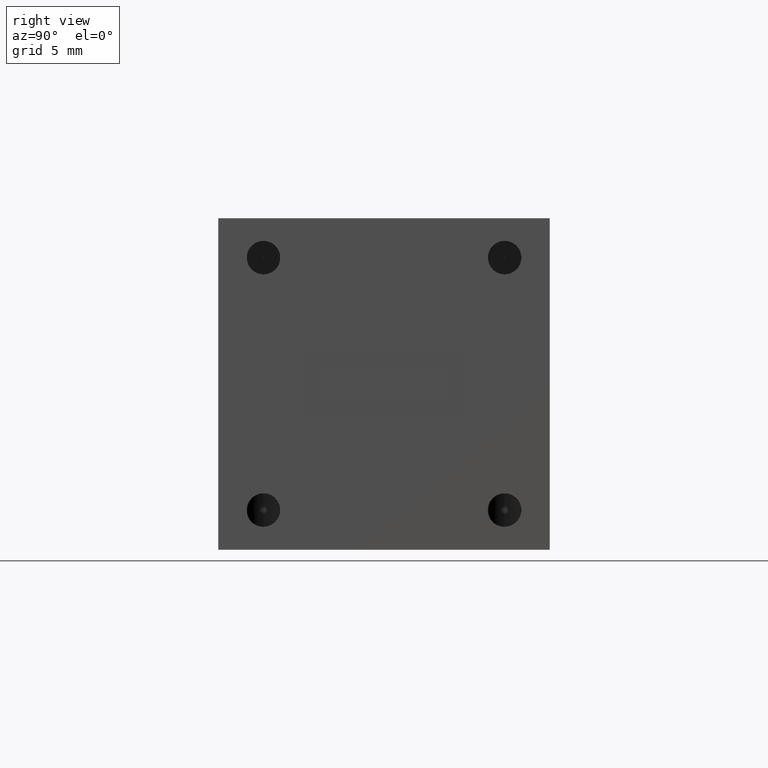
[diagram: clean part render]
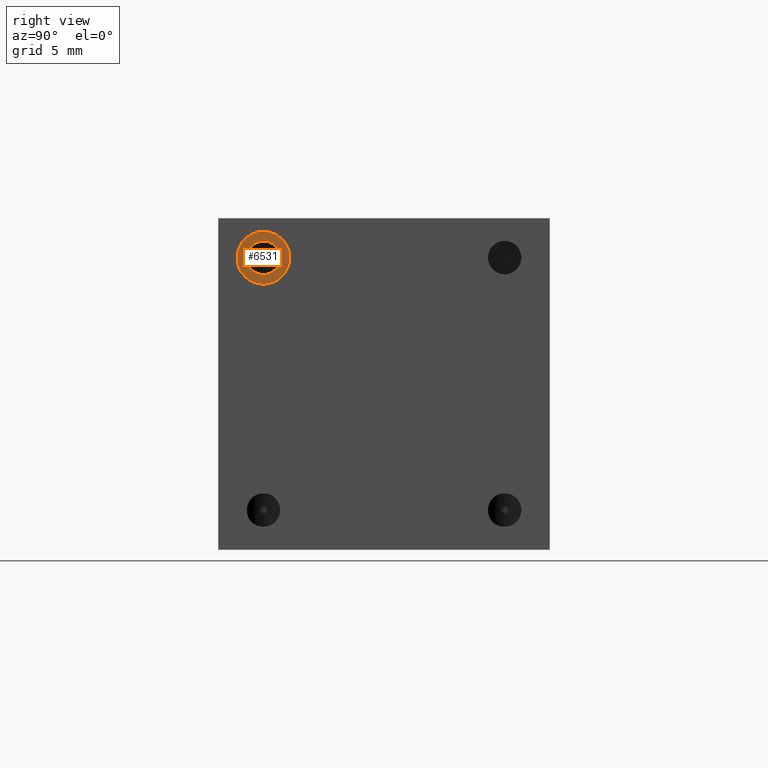
[diagram: same view with one face highlighted and labeled with its STEP entity id]
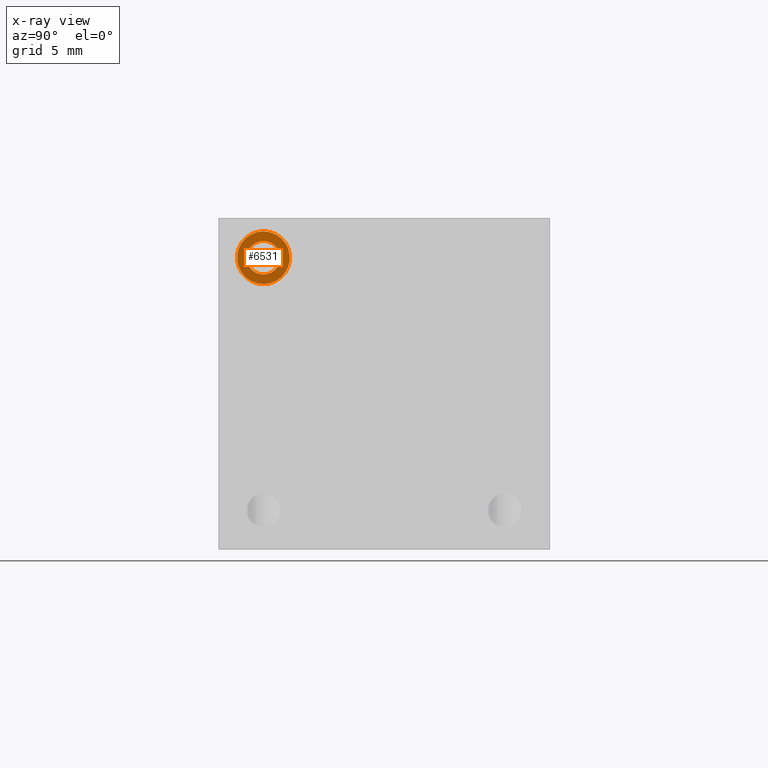
[diagram: x-ray of the same camera — body ghosted, the highlighted face saturated]
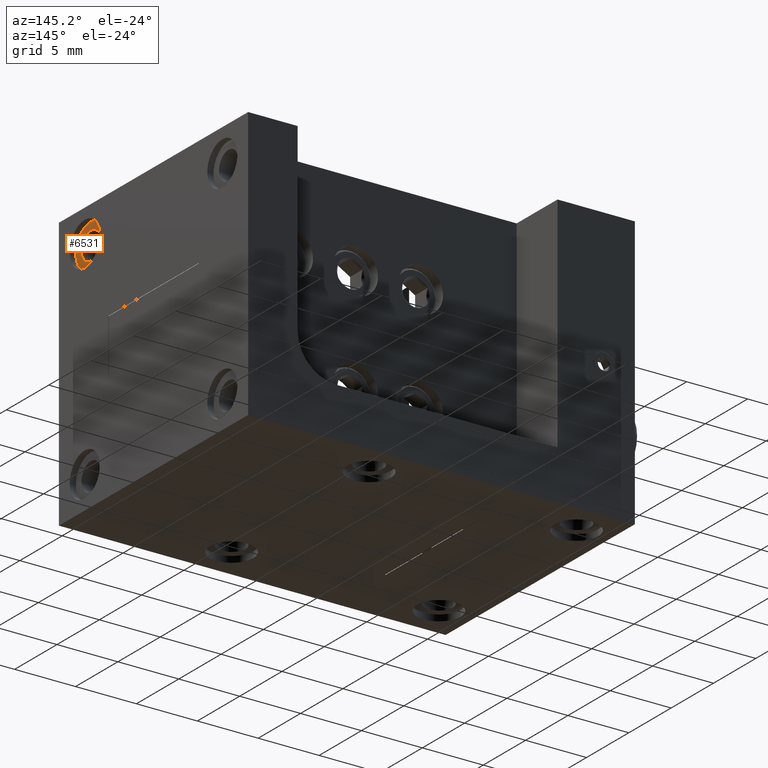
[diagram: same view with one face highlighted and labeled with its STEP entity id]
A machine part, right view. The second image highlights one B-rep face of the part: STEP entity #6531.
The next image is the same camera in x-ray: the body ghosted, the highlighted face saturated — about 0% of this face is hidden behind the body in this view.
A second angle (auxiliary view) of the same face is appended — the face is thin or edge-on in the first view.
In plain terms, the highlighted planar face has unit normal (1, 0, 0).
Its self-contained STEP definition (entity closure, byte-faithful):
#54 = DIRECTION ( 'NONE',  ( 0.0000000000000000000, 0.0000000000000000000, -1.000000000000000000 ) ) ;
#349 = ORIENTED_EDGE ( 'NONE', *, *, #5324, .T. ) ;
#572 = ORIENTED_EDGE ( 'NONE', *, *, #3758, .T. ) ;
#743 = DIRECTION ( 'NONE',  ( 0.0000000000000000000, 0.0000000000000000000, -1.000000000000000000 ) ) ;
#1341 = CIRCLE ( 'NONE', #5282, 0.04449999999999975500 ) ;
#1546 = CARTESIAN_POINT ( 'NONE',  ( 0.1843397679326660200, -0.6714438674591303200, 0.5532252380678194200 ) ) ;
#1680 = VERTEX_POINT ( 'NONE', #1546 ) ;
#1849 = CARTESIAN_POINT ( 'NONE',  ( 0.1843397679326660200, -0.6714438674591303200, 0.4832252380678194200 ) ) ;
#2353 = FACE_BOUND ( 'NONE', #6462, .T. ) ;
#2570 = EDGE_LOOP ( 'NONE', ( #7172, #349 ) ) ;
#2587 = CARTESIAN_POINT ( 'NONE',  ( 0.1843397679326660200, -0.6714438674591303200, 0.5277252380678192400 ) ) ;
#2798 = DIRECTION ( 'NONE',  ( -1.000000000000000000, -0.0000000000000000000, -0.0000000000000000000 ) ) ;
#2936 = CARTESIAN_POINT ( 'NONE',  ( 0.1843397679326660200, -0.6714438674591303200, 0.4387252380678197100 ) ) ;
#2945 = DIRECTION ( 'NONE',  ( -1.000000000000000000, -0.0000000000000000000, -0.0000000000000000000 ) ) ;
#3024 = CARTESIAN_POINT ( 'NONE',  ( 0.1843397679326660200, -0.6714438674591303200, 0.4832252380678194200 ) ) ;
#3355 = DIRECTION ( 'NONE',  ( 0.0000000000000000000, 0.0000000000000000000, -1.000000000000000000 ) ) ;
#3565 = CARTESIAN_POINT ( 'NONE',  ( 0.1843397679326660200, -0.6714438674591303200, 0.4832252380678194200 ) ) ;
#3656 = FACE_OUTER_BOUND ( 'NONE', #2570, .T. ) ;
#3758 = EDGE_CURVE ( 'NONE', #4393, #4949, #1341, .T. ) ;
#3916 = AXIS2_PLACEMENT_3D ( 'NONE', #3565, #7135, #743 ) ;
#4016 = CARTESIAN_POINT ( 'NONE',  ( 0.1843397679326660200, -0.6714438674591303200, 0.4132252380678194100 ) ) ;
#4264 = PLANE ( 'NONE',  #6958 ) ;
#4393 = VERTEX_POINT ( 'NONE', #2936 ) ;
#4444 = CARTESIAN_POINT ( 'NONE',  ( 0.1843397679326660200, -0.6714438674591303200, 0.4832252380678194200 ) ) ;
#4506 = CIRCLE ( 'NONE', #7210, 0.04449999999999975500 ) ;
#4721 = EDGE_CURVE ( 'NONE', #4949, #4393, #4506, .T. ) ;
#4949 = VERTEX_POINT ( 'NONE', #2587 ) ;
#5042 = CIRCLE ( 'NONE', #6861, 0.07000000000000000700 ) ;
#5282 = AXIS2_PLACEMENT_3D ( 'NONE', #1849, #2945, #54 ) ;
#5324 = EDGE_CURVE ( 'NONE', #1680, #7421, #5042, .T. ) ;
#6028 = DIRECTION ( 'NONE',  ( 0.0000000000000000000, 0.0000000000000000000, -1.000000000000000000 ) ) ;
#6300 = CIRCLE ( 'NONE', #3916, 0.07000000000000000700 ) ;
#6320 = CARTESIAN_POINT ( 'NONE',  ( 0.1843397679326660200, -0.6714438674591303200, 0.4832252380678194200 ) ) ;
#6419 = ORIENTED_EDGE ( 'NONE', *, *, #4721, .T. ) ;
#6462 = EDGE_LOOP ( 'NONE', ( #572, #6419 ) ) ;
#6531 = ADVANCED_FACE ( 'NONE', ( #3656, #2353 ), #4264, .T. ) ;
#6822 = DIRECTION ( 'NONE',  ( 1.000000000000000000, 0.0000000000000000000, 0.0000000000000000000 ) ) ;
#6861 = AXIS2_PLACEMENT_3D ( 'NONE', #4444, #6822, #3355 ) ;
#6904 = DIRECTION ( 'NONE',  ( 0.0000000000000000000, 0.0000000000000000000, -1.000000000000000000 ) ) ;
#6958 = AXIS2_PLACEMENT_3D ( 'NONE', #3024, #7114, #6028 ) ;
#7114 = DIRECTION ( 'NONE',  ( 1.000000000000000000, 0.0000000000000000000, 0.0000000000000000000 ) ) ;
#7135 = DIRECTION ( 'NONE',  ( 1.000000000000000000, 0.0000000000000000000, 0.0000000000000000000 ) ) ;
#7172 = ORIENTED_EDGE ( 'NONE', *, *, #7547, .T. ) ;
#7210 = AXIS2_PLACEMENT_3D ( 'NONE', #6320, #2798, #6904 ) ;
#7421 = VERTEX_POINT ( 'NONE', #4016 ) ;
#7547 = EDGE_CURVE ( 'NONE', #7421, #1680, #6300, .T. ) ;